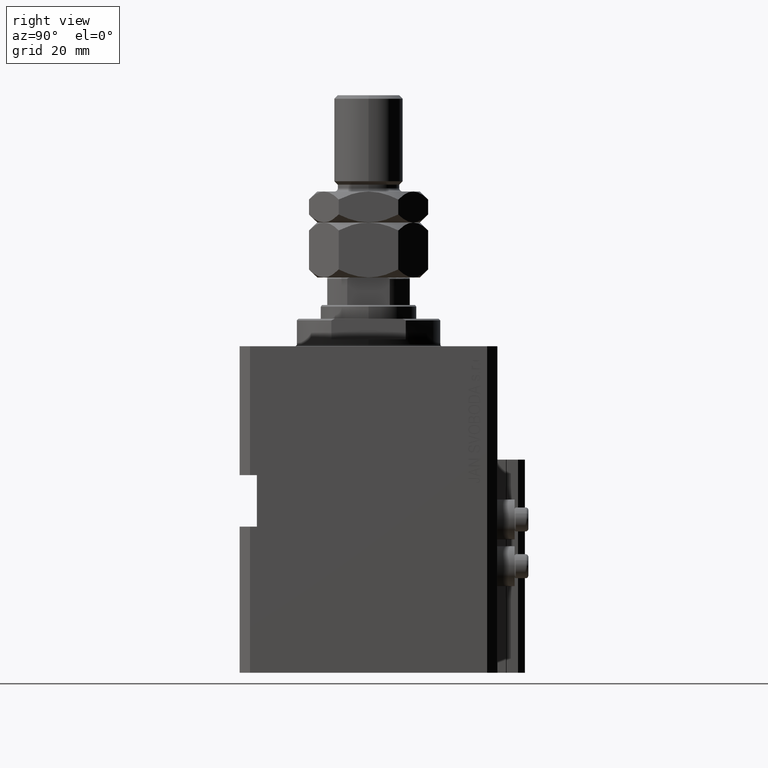
[diagram: clean part render]
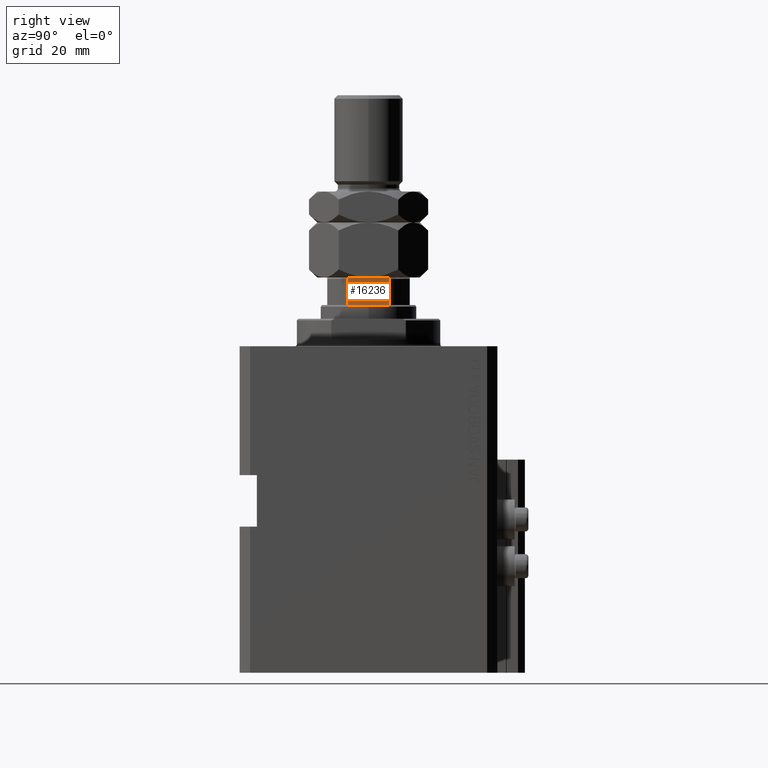
[diagram: same view with one face highlighted and labeled with its STEP entity id]
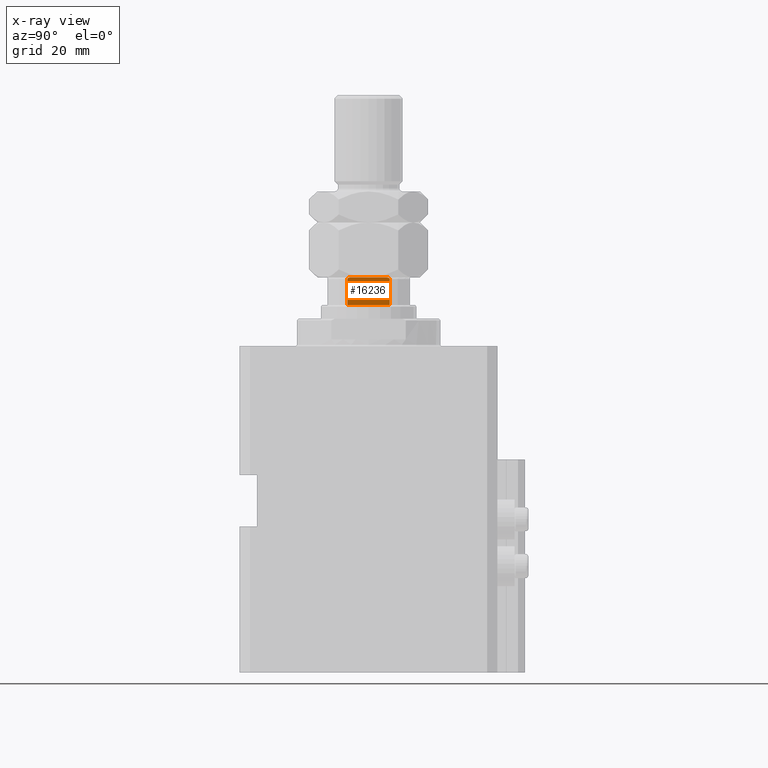
[diagram: x-ray of the same camera — body ghosted, the highlighted face saturated]
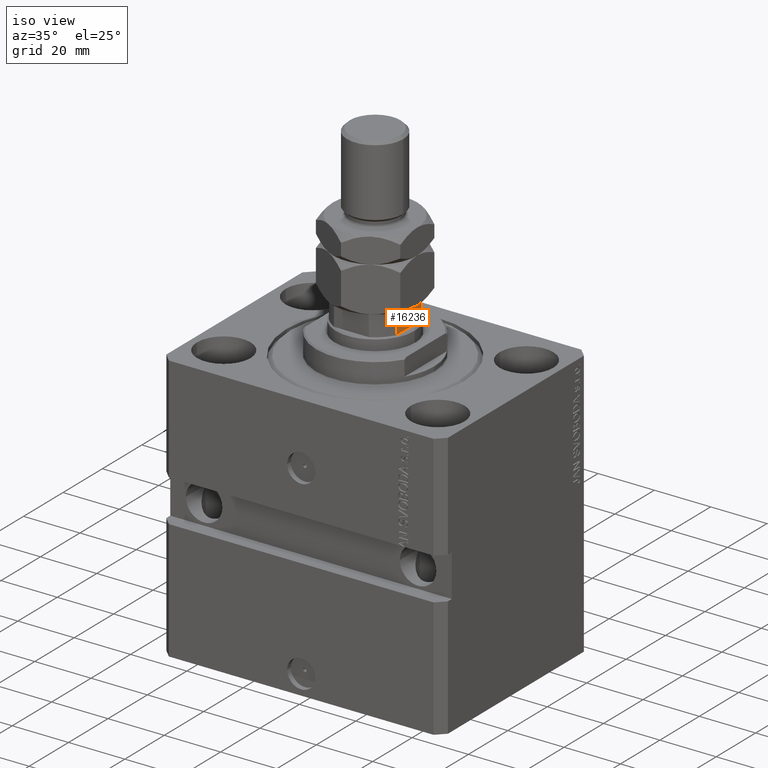
[diagram: same view with one face highlighted and labeled with its STEP entity id]
A machine part, right view. The second image highlights one B-rep face of the part: STEP entity #16236.
The next image is the same camera in x-ray: the body ghosted, the highlighted face saturated — about 0% of this face is hidden behind the body in this view.
A second angle (iso view) of the same face is appended — the face is thin or edge-on in the first view.
In plain terms, the highlighted planar face has unit normal (-1, -0, 0).
Its self-contained STEP definition (entity closure, byte-faithful):
#590 = VERTEX_POINT ( 'NONE', #30648 ) ;
#2778 = EDGE_CURVE ( 'NONE', #22943, #25453, #20701, .T. ) ;
#4584 = EDGE_LOOP ( 'NONE', ( #36052, #22764, #43426, #35422, #31671, #45707 ) ) ;
#5669 = CARTESIAN_POINT ( 'NONE',  ( 12.00000000000000178, -4.999999999999990230, 103.0999999999999943 ) ) ;
#6117 = CARTESIAN_POINT ( 'NONE',  ( 12.00000000000000000, -6.184658438426490434, 102.5999999999999943 ) ) ;
#6354 = CARTESIAN_POINT ( 'NONE',  ( 12.00000000000000178, -5.230809753656810557, 103.0999999999999943 ) ) ;
#6714 = CARTESIAN_POINT ( 'NONE',  ( 12.00000000000000000, 6.184658438426490434, 102.5999999999999943 ) ) ;
#7042 = PLANE ( 'NONE',  #17104 ) ;
#7541 = B_SPLINE_CURVE_WITH_KNOTS ( 'NONE', 3,
 ( #21026, #6354, #13331, #17306, #36238, #16587, #35984, #46979, #47457, #6117 ),
 .UNSPECIFIED., .F., .F.,
 ( 4, 2, 2, 2, 4 ),
 ( 8.673617379884035472E-19, 0.0006877128613558527916, 0.001031569292033774309, 0.001203497507372736260, 0.001375425722711697994 ),
 .UNSPECIFIED. ) ;
#11401 = EDGE_CURVE ( 'NONE', #22943, #25095, #15955, .T. ) ;
#13028 = CARTESIAN_POINT ( 'NONE',  ( 12.00000000000000000, -6.184658438426490434, -0.001000000000001000089 ) ) ;
#13331 = CARTESIAN_POINT ( 'NONE',  ( 12.00000000000000355, -5.459934723612532181, 103.0794964115812178 ) ) ;
#13960 = EDGE_CURVE ( 'NONE', #25095, #34641, #31405, .T. ) ;
#14588 = CARTESIAN_POINT ( 'NONE',  ( 12.00000000000000000, -6.184658438426490434, 102.5999999999999943 ) ) ;
#14682 = CARTESIAN_POINT ( 'NONE',  ( 11.99999999999999822, 6.091003570118822097, 102.8080862465981369 ) ) ;
#15020 = CARTESIAN_POINT ( 'NONE',  ( 12.00000000000000000, 12.00000000000000000, 103.0999999999999943 ) ) ;
#15308 = CARTESIAN_POINT ( 'NONE',  ( 12.00000000000000000, 12.00000000000000000, 103.0999999999999943 ) ) ;
#15955 = LINE ( 'NONE', #31141, #45600 ) ;
#16236 = ADVANCED_FACE ( 'NONE', ( #45158 ), #7042, .F. ) ;
#16587 = CARTESIAN_POINT ( 'NONE',  ( 11.99999999999999822, -6.045866546018587862, 102.8461068616299059 ) ) ;
#17104 = AXIS2_PLACEMENT_3D ( 'NONE', #15020, #22203, #48148 ) ;
#17306 = CARTESIAN_POINT ( 'NONE',  ( 12.00000000000000355, -5.793822051191353850, 102.9841735219943502 ) ) ;
#17911 = CARTESIAN_POINT ( 'NONE',  ( 12.00000000000000000, 5.792513940493496882, 102.9846382036009231 ) ) ;
#18146 = CARTESIAN_POINT ( 'NONE',  ( 12.00000000000000178, 5.458892612163319669, 103.0796099716497309 ) ) ;
#18730 = CARTESIAN_POINT ( 'NONE',  ( 12.00000000000000000, 6.184658438426490434, 102.5999999999999943 ) ) ;
#19508 = DIRECTION ( 'NONE',  ( -1.445602896647339163E-16, 1.000000000000000000, -0.000000000000000000 ) ) ;
#19991 = DIRECTION ( 'NONE',  ( -0.000000000000000000, -0.000000000000000000, 1.000000000000000000 ) ) ;
#20701 = LINE ( 'NONE', #13028, #27096 ) ;
#21026 = CARTESIAN_POINT ( 'NONE',  ( 12.00000000000000178, -4.999999999999990230, 103.0999999999999943 ) ) ;
#21229 = EDGE_CURVE ( 'NONE', #34641, #590, #27186, .T. ) ;
#21872 = CARTESIAN_POINT ( 'NONE',  ( 12.00000000000000355, 6.184658438426493099, 102.6589344020394066 ) ) ;
#22203 = DIRECTION ( 'NONE',  ( -1.000000000000000000, -1.445602896647339163E-16, 0.000000000000000000 ) ) ;
#22764 = ORIENTED_EDGE ( 'NONE', *, *, #34992, .T. ) ;
#22943 = VERTEX_POINT ( 'NONE', #26255 ) ;
#25095 = VERTEX_POINT ( 'NONE', #29960 ) ;
#25453 = VERTEX_POINT ( 'NONE', #14588 ) ;
#25864 = CARTESIAN_POINT ( 'NONE',  ( 12.00000000000000000, 6.161088279078728469, 102.7146234191510388 ) ) ;
#26255 = CARTESIAN_POINT ( 'NONE',  ( 12.00000000000000000, -6.184658438426490434, 95.10000000000006537 ) ) ;
#26667 = DIRECTION ( 'NONE',  ( -0.000000000000000000, -0.000000000000000000, 1.000000000000000000 ) ) ;
#27096 = VECTOR ( 'NONE', #19991, 1000.000000000000000 ) ;
#27186 = B_SPLINE_CURVE_WITH_KNOTS ( 'NONE', 3,
 ( #6714, #21872, #25864, #14682, #37082, #33096, #17911, #18146, #48296, #29355 ),
 .UNSPECIFIED., .F., .F.,
 ( 4, 2, 2, 2, 4 ),
 ( 0.000000000000000000, 0.0001740189231935461184, 0.0003480378463870922368, 0.0006960756927741823053, 0.001392151385548353552 ),
 .UNSPECIFIED. ) ;
#29355 = CARTESIAN_POINT ( 'NONE',  ( 12.00000000000000178, 4.999999999999994671, 103.0999999999999943 ) ) ;
#29960 = CARTESIAN_POINT ( 'NONE',  ( 12.00000000000000000, 6.184658438426490434, 95.10000000000006537 ) ) ;
#30648 = CARTESIAN_POINT ( 'NONE',  ( 12.00000000000000178, 4.999999999999994671, 103.0999999999999943 ) ) ;
#30665 = CARTESIAN_POINT ( 'NONE',  ( 12.00000000000000000, 6.184658438426490434, -0.001000000000001000089 ) ) ;
#31141 = CARTESIAN_POINT ( 'NONE',  ( 12.00000000000000000, 12.00000000000000000, 95.09999999999999432 ) ) ;
#31405 = LINE ( 'NONE', #30665, #43278 ) ;
#31671 = ORIENTED_EDGE ( 'NONE', *, *, #13960, .T. ) ;
#33096 = CARTESIAN_POINT ( 'NONE',  ( 11.99999999999999822, 5.900889097622409096, 102.9429613869932609 ) ) ;
#33743 = VERTEX_POINT ( 'NONE', #5669 ) ;
#34641 = VERTEX_POINT ( 'NONE', #18730 ) ;
#34992 = EDGE_CURVE ( 'NONE', #33743, #25453, #7541, .T. ) ;
#35422 = ORIENTED_EDGE ( 'NONE', *, *, #11401, .T. ) ;
#35984 = CARTESIAN_POINT ( 'NONE',  ( 12.00000000000000355, -6.091027642353955329, 102.8080088155617347 ) ) ;
#36052 = ORIENTED_EDGE ( 'NONE', *, *, #37738, .F. ) ;
#36238 = CARTESIAN_POINT ( 'NONE',  ( 12.00000000000000355, -5.903192932991093045, 102.9415152347680191 ) ) ;
#37082 = CARTESIAN_POINT ( 'NONE',  ( 12.00000000000000533, 6.046414714222230202, 102.8457872300293161 ) ) ;
#37738 = EDGE_CURVE ( 'NONE', #33743, #590, #41938, .T. ) ;
#41938 = LINE ( 'NONE', #15308, #44789 ) ;
#43278 = VECTOR ( 'NONE', #26667, 1000.000000000000000 ) ;
#43426 = ORIENTED_EDGE ( 'NONE', *, *, #2778, .F. ) ;
#44789 = VECTOR ( 'NONE', #19508, 1000.000000000000000 ) ;
#45158 = FACE_OUTER_BOUND ( 'NONE', #4584, .T. ) ;
#45600 = VECTOR ( 'NONE', #46342, 1000.000000000000000 ) ;
#45707 = ORIENTED_EDGE ( 'NONE', *, *, #21229, .T. ) ;
#46342 = DIRECTION ( 'NONE',  ( -1.445602896647339163E-16, 1.000000000000000000, -0.000000000000000000 ) ) ;
#46979 = CARTESIAN_POINT ( 'NONE',  ( 12.00000000000000533, -6.160856115322533633, 102.7149782197478629 ) ) ;
#47457 = CARTESIAN_POINT ( 'NONE',  ( 12.00000000000000533, -6.184658438426488658, 102.6589821493407442 ) ) ;
#48148 = DIRECTION ( 'NONE',  ( 1.445602896647339163E-16, -1.000000000000000000, 0.000000000000000000 ) ) ;
#48296 = CARTESIAN_POINT ( 'NONE',  ( 12.00000000000000355, 5.230795946637837979, 103.1000000000000085 ) ) ;